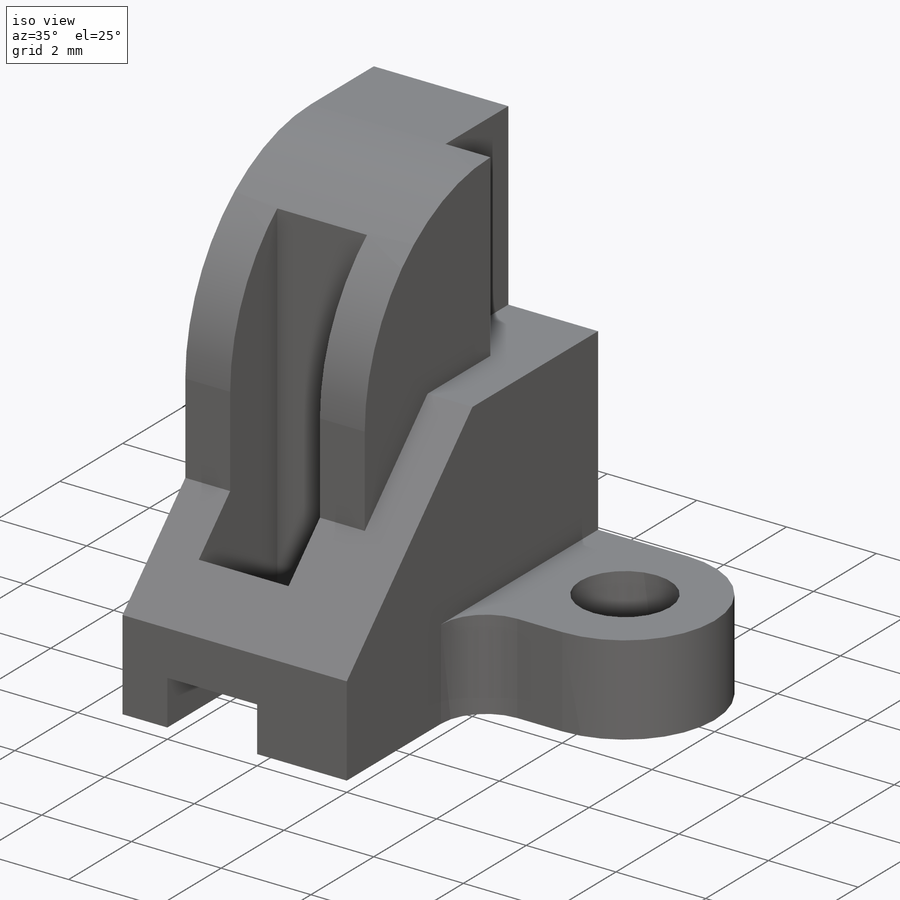
[diagram: iso view]
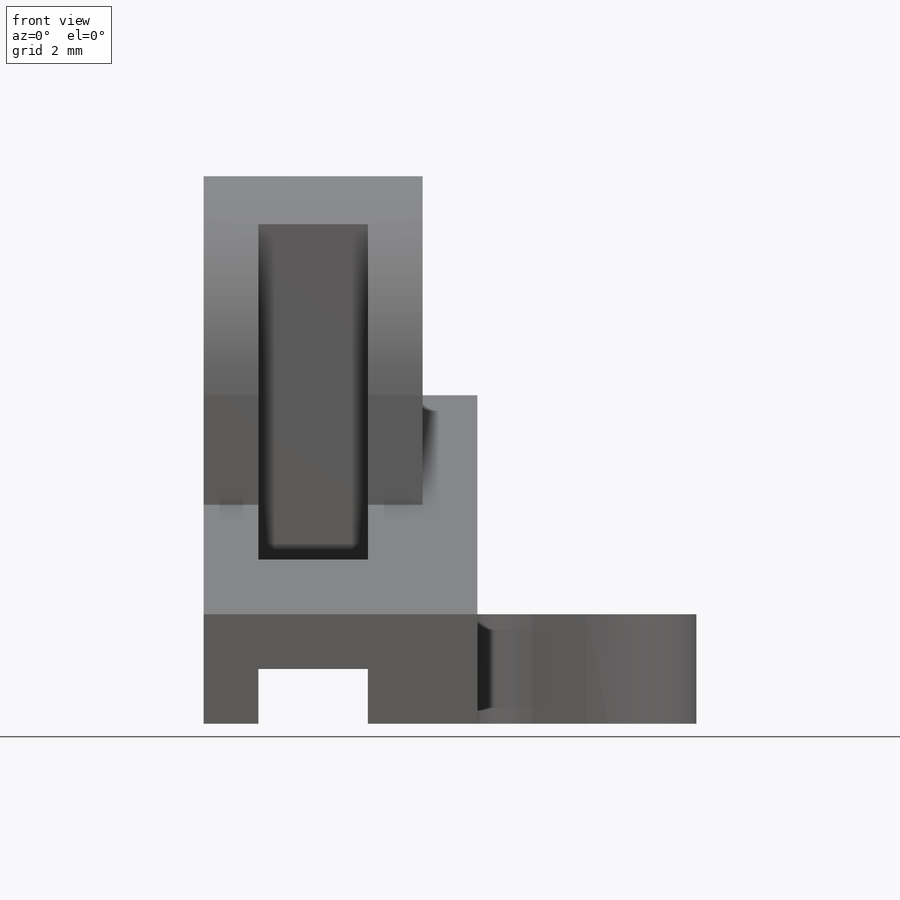
[diagram: front view]
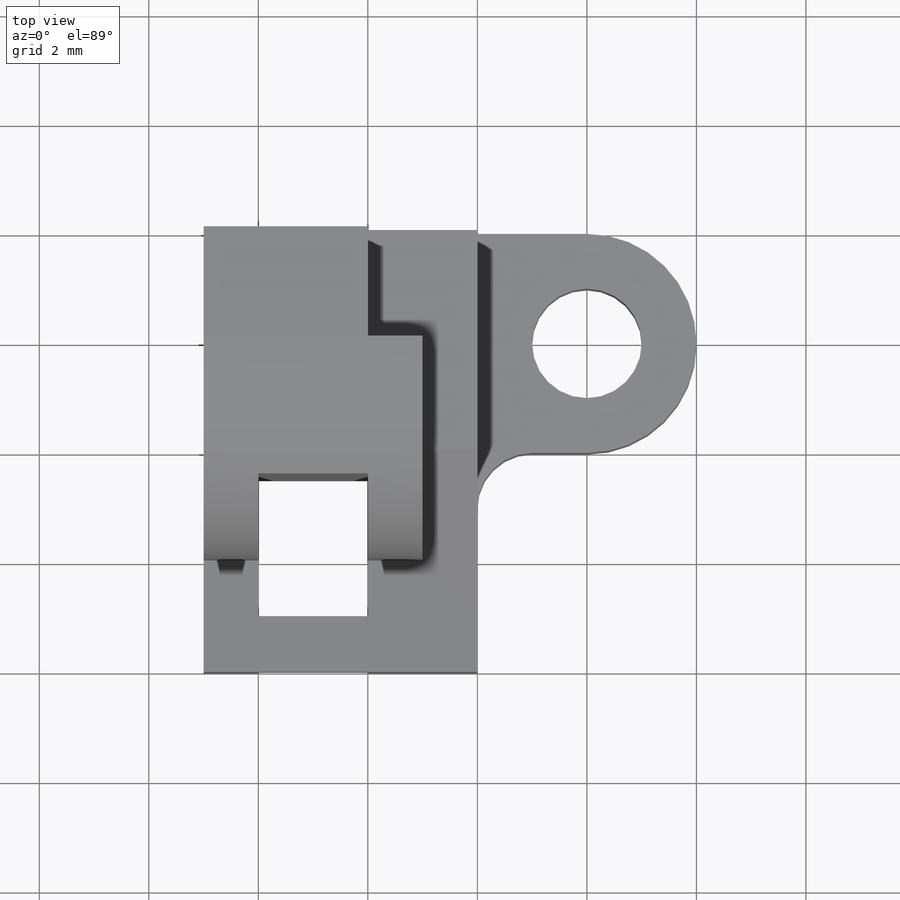
[diagram: top view]
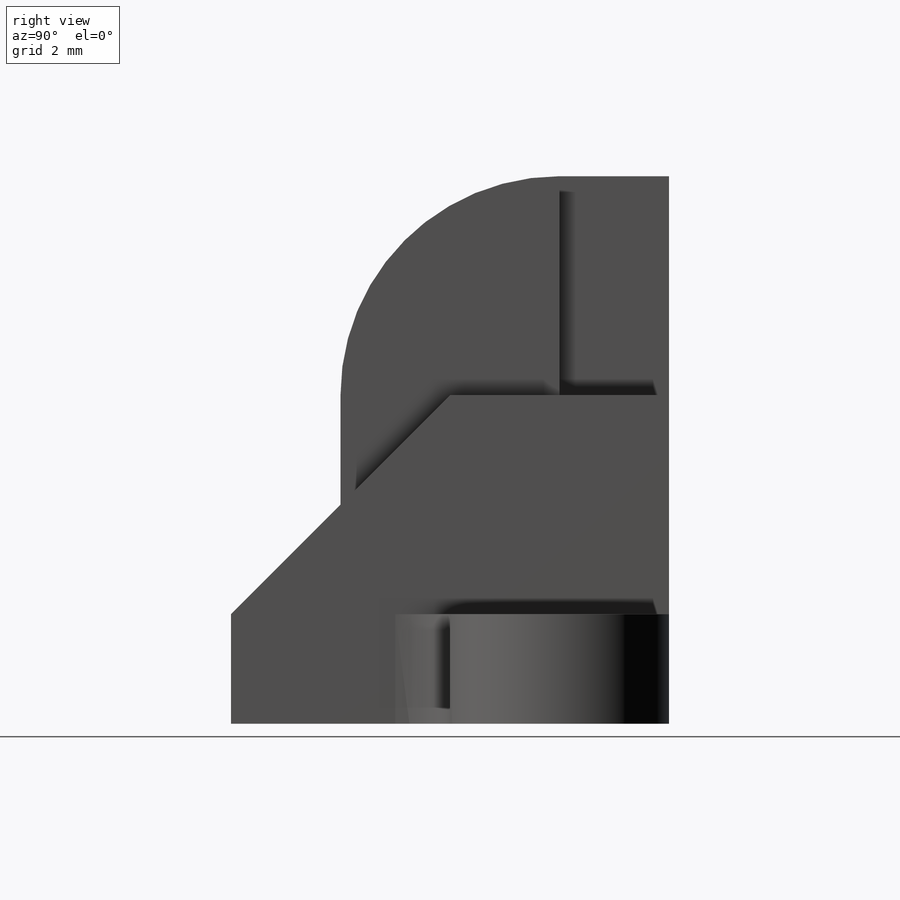
[diagram: right view]
SOLIDWORKS PART (.sldprt)
format: sldprt  version: not decoded by parser v0  size: 249,856 bytes
history: native  units: mm
features: sketch x6, cut_extrude x4, extrude x2, material x1 (+13 scaffold rows collapsed)
feature tree (26):
  scaffold x13  (default folders/planes/origin — collapsed)
  material  "Material <not specified>"
  sketch  "Sketch1"  dims[c1.D1=2.0mm c1.D2=1.0mm c1.D3=2.0mm c1.D4=10.0mm c1.D5=4.0mm c1.D6=1.0mm c1.D7=1.0mm c1.D8=2.0mm c1.D9=4.0mm c1.D10=4.0mm c2.D6=6.0mm c2.D8=2.0mm]
  extrude  "Boss-Extrude2"  Depth=8mm
  sketch  "Sketch2"  dims[D3=2.0mm D1=2.0mm D2=2.0mm D4=2.0mm D5=3.0mm D6=1.0mm D7=1.0mm D8=1.0mm]
  extrude  "Boss-Extrude3"  Depth=2mm
  sketch  "Sketch3"  dims[D1=2.0mm D2=2.0mm]
  cut_extrude  "Cut-Extrude1"  Depth=4mm
  sketch  "Sketch4"  dims[D1=2.0mm D2=6.0mm D3=2.0mm D4=2.0mm D5=2.0mm]
  cut_extrude  "Cut-Extrude2"  Depth=10mm
  sketch  "Sketch5"  dims[D1=4.0mm]
  cut_extrude  "Cut-Extrude3"  Depth=1mm
  sketch  "Sketch6"  dims[D1=1.0mm D2=2.5mm]
  cut_extrude  "Cut-Extrude4"  [1 undecoded]
decode coverage: 11 of 12 modeling features carry decoded parameters
note: 1 parameter value undecoded
note: suppression state not decoded; provenance and decode notes live in map.json
